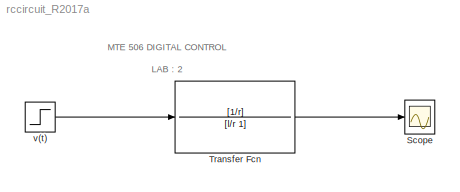
MODEL rccircuit_R2017a
KIND model
BLOCK [Scope] Scope
  Floating = off
  NumInputPorts = 1
  Ports = [1]
  SID = 5
  ScopeSpecificationString = Simulink.scopes.TimeScopeBlockCfg('CurrentConfiguration', extmgr.ConfigurationSet(extmgr.Configuration('Core','General UI',true),extmgr.Configuration('Core','Source UI',true),extmgr.Configuration('Sources','WiredSimulink',true),extmgr.Configuration('Visuals','Time Domain',true,'SerializedDisplays',{struct('MinYLimReal','-0.00083','MaxYLimReal','0.0075','YLabelReal','','MinYLimMag','0.00000','MaxYL...<+1430ch>
BLOCK [TransferFcn] Transfer Fcn
  Denominator = [l/r 1]
  Numerator = [1/r]
  SID = 4
BLOCK [Step] v(t)
  After = 5
  SID = 1
  SampleTime = 0
  Time = 0
ANNOTATION (root): \n \n MTE 506 DIGITAL CONTROL \n LAB : 2 \n EXERCISE : 2
LINE Transfer Fcn:1 -> Scope:1
LINE v(t):1 -> Transfer Fcn:1
